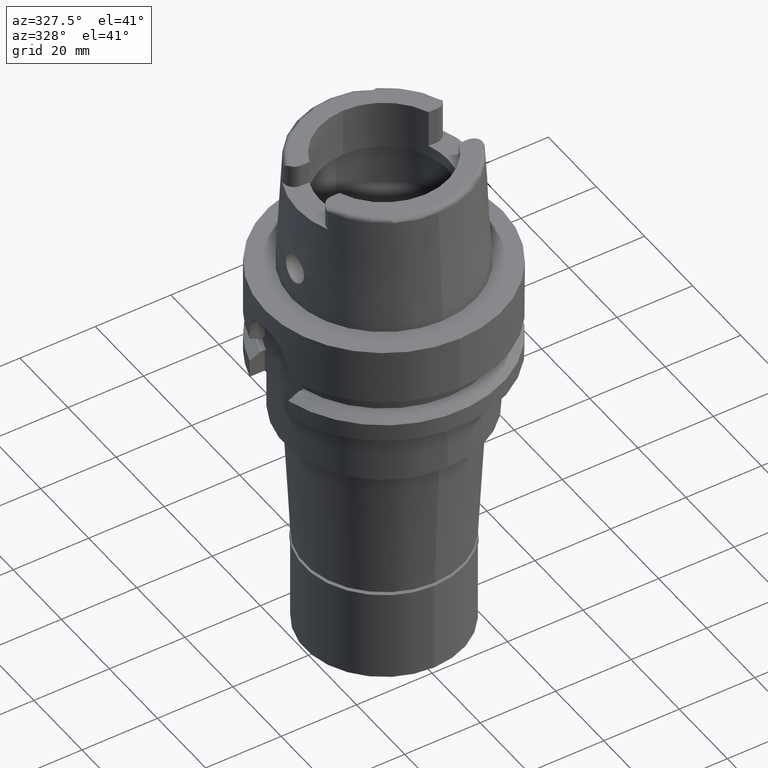
[diagram: clean part render]
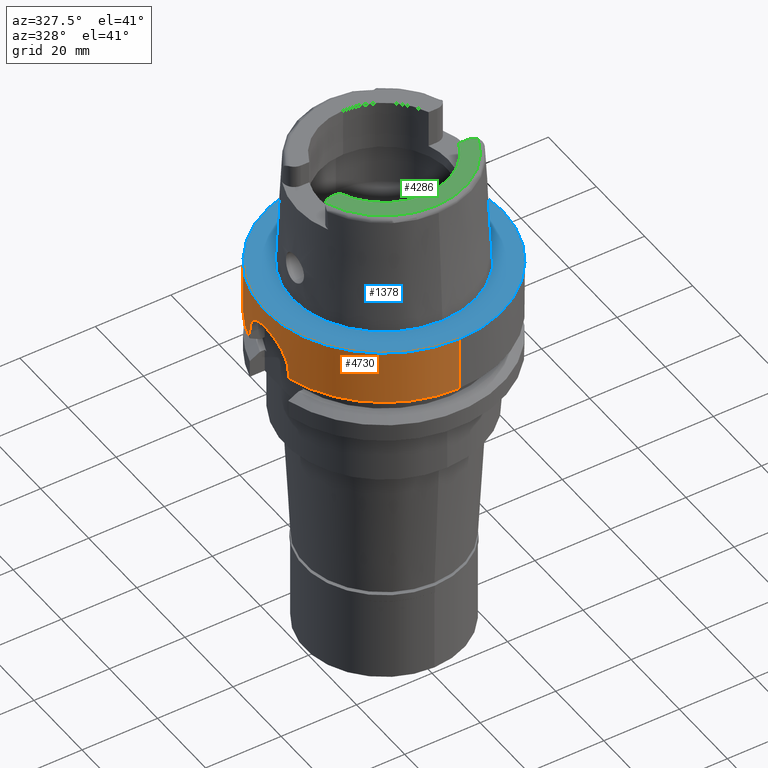
[diagram: same view with three faces highlighted in distinct colors, each labeled with its STEP entity id]
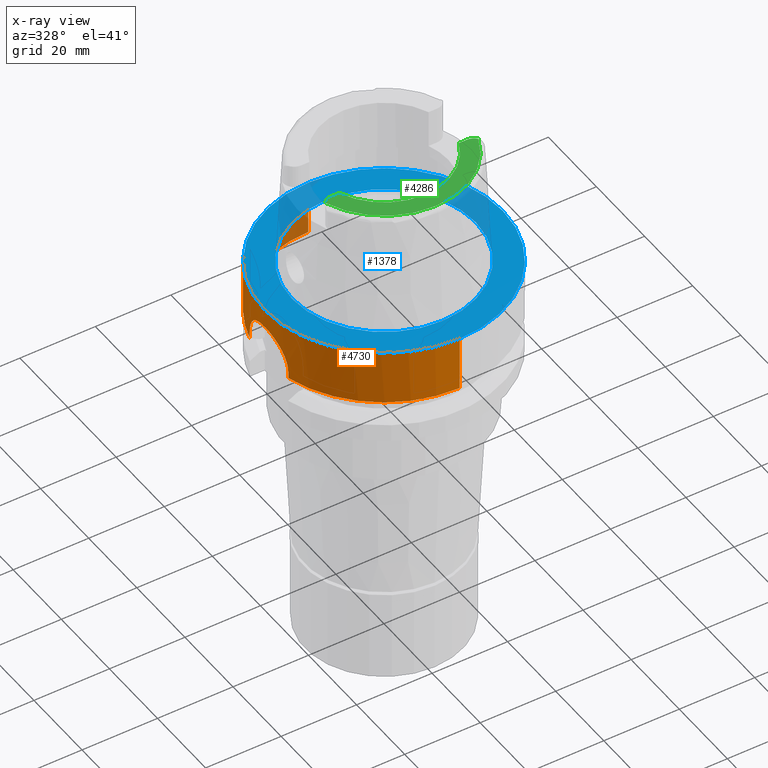
[diagram: x-ray of the same camera — body ghosted, the three highlighted faces saturated]
A machine part, auxiliary view with three faces highlighted in distinct colors.
The next image is the same camera in x-ray (body ghosted, the three faces saturated) — at least one of them is partly hidden behind the body in this view.
Their STEP definitions:

[orange] entity #4730 — the highlighted cylindrical surface (partial cylindrical patch) has radius 31.5 mm, axis along (0, 0, 1).
#36 = CARTESIAN_POINT ( 'NONE',  ( 0.0000000000000000000, 0.0000000000000000000, -14.62250092523999889 ) ) ;
#79 = CARTESIAN_POINT ( 'NONE',  ( -31.17125852457936475, 4.540368874102139962, -6.412031945349157880 ) ) ;
#102 = CARTESIAN_POINT ( 'NONE',  ( -30.53486720067081350, 7.738075684351631622, -10.95273669261678151 ) ) ;
#118 = CARTESIAN_POINT ( 'NONE',  ( -24.31739938360097497, 20.02303739605130772, -11.41221535958003663 ) ) ;
#134 = CARTESIAN_POINT ( 'NONE',  ( -31.21806995169348653, 4.210859599592639668, -6.192815206136385697 ) ) ;
#156 = CARTESIAN_POINT ( 'NONE',  ( -30.46719547316000032, -8.000000000000000000, -13.00000000000000000 ) ) ;
#159 = CARTESIAN_POINT ( 'NONE',  ( -30.91857318719439363, -6.036445372316031843, -7.723293636608661750 ) ) ;
#187 = CARTESIAN_POINT ( 'NONE',  ( -31.39671527135315543, -2.551756247944871436, -5.416712190222533252 ) ) ;
#320 = DIRECTION ( 'NONE',  ( 0.0000000000000000000, 0.0000000000000000000, 1.000000000000000000 ) ) ;
#321 = EDGE_CURVE ( 'NONE', #2364, #2716, #1869, .T. ) ;
#322 = EDGE_LOOP ( 'NONE', ( #1585, #693, #4148, #4102, #1150, #3219, #4554, #2486, #762, #4663, #771, #3641 ) ) ;
#331 = LINE ( 'NONE', #1105, #4354 ) ;
#348 = CARTESIAN_POINT ( 'NONE',  ( -22.71555511956211859, 21.82388934614423803, -7.023550805667640340 ) ) ;
#407 = CARTESIAN_POINT ( 'NONE',  ( -20.00000000000000000, 24.33618704727999926, -5.000000000001000089 ) ) ;
#498 = EDGE_CURVE ( 'NONE', #2081, #1656, #331, .T. ) ;
#524 = CARTESIAN_POINT ( 'NONE',  ( -31.49677512529922652, -0.5190792995170155910, -5.012591775769404734 ) ) ;
#582 = VERTEX_POINT ( 'NONE', #5207 ) ;
#586 = CARTESIAN_POINT ( 'NONE',  ( -30.51893315439571097, 7.800474451156759415, -11.20536184592949169 ) ) ;
#602 = EDGE_CURVE ( 'NONE', #2003, #4839, #1016, .T. ) ;
#613 = CARTESIAN_POINT ( 'NONE',  ( -30.95339424955331609, 5.845829516478185717, -7.532370027206816587 ) ) ;
#637 = CARTESIAN_POINT ( 'NONE',  ( -30.72362680542134328, 6.956926099389388440, -9.014865801447339066 ) ) ;
#693 = ORIENTED_EDGE ( 'NONE', *, *, #4214, .F. ) ;
#750 = LINE ( 'NONE', #2186, #5059 ) ;
#762 = ORIENTED_EDGE ( 'NONE', *, *, #3605, .T. ) ;
#770 = DIRECTION ( 'NONE',  ( 0.0000000000000000000, -2.672583210395999918E-14, -1.000000000000000000 ) ) ;
#771 = ORIENTED_EDGE ( 'NONE', *, *, #3506, .T. ) ;
#787 = CARTESIAN_POINT ( 'NONE',  ( -23.42282105971236561, 21.06232378565220387, -8.128107010674932909 ) ) ;
#797 = CARTESIAN_POINT ( 'NONE',  ( 0.0000000000000000000, 0.0000000000000000000, -14.62250092523999889 ) ) ;
#805 = LINE ( 'NONE', #2065, #2504 ) ;
#815 = CARTESIAN_POINT ( 'NONE',  ( -22.11654899248160788, 22.43007941135832795, -6.369228008395599439 ) ) ;
#839 = DIRECTION ( 'NONE',  ( -0.9672125547036138915, -0.2539682539683034701, 0.0000000000000000000 ) ) ;
#845 = CARTESIAN_POINT ( 'NONE',  ( -23.23273074194696974, 21.27338265816705132, -7.764950729943016938 ) ) ;
#933 = CARTESIAN_POINT ( 'NONE',  ( -24.12049851483102003, 20.25961390236335902, -10.08972362107126841 ) ) ;
#943 = CARTESIAN_POINT ( 'NONE',  ( -31.24713681681722477, -3.984897501304583312, -6.061802170373099763 ) ) ;
#962 = CARTESIAN_POINT ( 'NONE',  ( -30.46719547316397581, 8.000000000001035616, -12.74141169851611366 ) ) ;
#964 = CARTESIAN_POINT ( 'NONE',  ( -30.48036059509013285, -7.950356523976281231, -11.97071246685689161 ) ) ;
#996 = CARTESIAN_POINT ( 'NONE',  ( -30.46719547316000032, -8.000000000000000000, -13.00000000000000000 ) ) ;
#1016 = B_SPLINE_CURVE_WITH_KNOTS ( 'NONE', 3,
 ( #3042, #3837, #118, #2601, #4281, #3910, #1400, #4725, #3093, #933, #3833, #2969, #5027, #4245, #5119, #5095, #2999, #3725, #787, #2044, #845, #2592, #348, #1628, #2076, #3750, #3339, #5006, #1208, #2908, #815, #2512, #4188, #407 ),
 .UNSPECIFIED., .F., .F.,
 ( 4, 2, 2, 1, 2, 2, 2, 2, 1, 1, 2, 2, 2, 2, 1, 1, 1, 2, 2, 4 ),
 ( 0.0000000000000000000, 0.1249999999999981404, 0.1874999999999975853, 0.2187499999999971134, 0.2343749999999968636, 0.2499999999999966138, 0.3749999999999957256, 0.4374999999999951705, 0.4687499999999948930, 0.4843749999999952260, 0.4921874999999951150, 0.4999999999999950040, 0.6249999999999942268, 0.6874999999999938938, 0.7187499999999938938, 0.7343749999999937828, 0.7421874999999940048, 0.7460937499999945599, 0.7499999999999951150, 1.000000000000000000 ),
 .UNSPECIFIED. ) ;
#1024 = CARTESIAN_POINT ( 'NONE',  ( -31.02187808113702872, 5.470778612142692232, -7.156988511190683688 ) ) ;
#1030 = CARTESIAN_POINT ( 'NONE',  ( 0.0000000000000000000, -31.50000000000000000, 0.0000000000000000000 ) ) ;
#1050 = CARTESIAN_POINT ( 'NONE',  ( -31.28953998201770048, 3.637077696510422342, -5.873297521405669741 ) ) ;
#1071 = CIRCLE ( 'NONE', #3026, 31.50000000000000000 ) ;
#1105 = CARTESIAN_POINT ( 'NONE',  ( 0.0000000000000000000, -31.50000000000000000, 0.0000000000000000000 ) ) ;
#1138 = EDGE_CURVE ( 'NONE', #3831, #1656, #2896, .T. ) ;
#1150 = ORIENTED_EDGE ( 'NONE', *, *, #4287, .T. ) ;
#1189 = DIRECTION ( 'NONE',  ( 0.0000000000000000000, 0.0000000000000000000, 1.000000000000000000 ) ) ;
#1203 = DIRECTION ( 'NONE',  ( -0.0000000000000000000, -0.0000000000000000000, -1.000000000000000000 ) ) ;
#1208 = CARTESIAN_POINT ( 'NONE',  ( -22.13990552091419062, 22.40702674288545282, -6.391681059372950280 ) ) ;
#1242 = EDGE_CURVE ( 'NONE', #2354, #2716, #5250, .T. ) ;
#1338 = DIRECTION ( 'NONE',  ( -1.630691539743991690E-08, -6.209897358423978462E-08, -0.9999999999999980016 ) ) ;
#1361 = CARTESIAN_POINT ( 'NONE',  ( -30.59373723261228406, -7.502244466330298955, -10.20989398916889535 ) ) ;
#1385 = CARTESIAN_POINT ( 'NONE',  ( -30.51876164595472218, -7.801142564629040876, -11.20858455538008869 ) ) ;
#1400 = CARTESIAN_POINT ( 'NONE',  ( -24.17238210457848524, 20.19774409071592558, -10.34029033770483963 ) ) ;
#1415 = CARTESIAN_POINT ( 'NONE',  ( -31.21750923799496036, -4.210710666917979239, -6.196542798051132728 ) ) ;
#1438 = CARTESIAN_POINT ( 'NONE',  ( -31.30298826463104334, 3.519555021601333600, -5.814551383529717121 ) ) ;
#1441 = CARTESIAN_POINT ( 'NONE',  ( -30.46719547316000032, 8.000000000000000000, -13.00000000000000000 ) ) ;
#1467 = CARTESIAN_POINT ( 'NONE',  ( -31.26152930267402041, -3.870456020469371872, -5.997298722305188790 ) ) ;
#1509 = VECTOR ( 'NONE', #1203, 1000.000000000000000 ) ;
#1527 = VERTEX_POINT ( 'NONE', #156 ) ;
#1569 = DIRECTION ( 'NONE',  ( 0.0000000000000000000, 0.0000000000000000000, 1.000000000000000000 ) ) ;
#1585 = ORIENTED_EDGE ( 'NONE', *, *, #602, .F. ) ;
#1628 = CARTESIAN_POINT ( 'NONE',  ( -22.60187682607207194, 21.94168555301713397, -6.883928054154604403 ) ) ;
#1631 = VERTEX_POINT ( 'NONE', #2355 ) ;
#1656 = VERTEX_POINT ( 'NONE', #4164 ) ;
#1776 = CARTESIAN_POINT ( 'NONE',  ( -31.12248983947012704, 4.863358306369471862, -6.646602164951598724 ) ) ;
#1805 = CARTESIAN_POINT ( 'NONE',  ( -30.59375289132899667, 7.502188844600670592, -10.20961931647805798 ) ) ;
#1830 = CARTESIAN_POINT ( 'NONE',  ( -31.37653858702547893, 2.796769158684870415, -5.500265141537501457 ) ) ;
#1854 = CARTESIAN_POINT ( 'NONE',  ( -31.05592043737171437, 5.274730966343901706, -6.979333167998830412 ) ) ;
#1869 = CIRCLE ( 'NONE', #4254, 31.50000000000000711 ) ;
#1882 = CARTESIAN_POINT ( 'NONE',  ( -30.81885551309213866, 6.516951823586190073, -8.352437154013390597 ) ) ;
#1956 = VECTOR ( 'NONE', #1984, 1000.000000000000000 ) ;
#1984 = DIRECTION ( 'NONE',  ( 0.0000000000000000000, 2.672583210395999918E-14, -1.000000000000000000 ) ) ;
#2003 = VERTEX_POINT ( 'NONE', #5260 ) ;
#2044 = CARTESIAN_POINT ( 'NONE',  ( -23.41383396518895310, 21.07231654906985696, -8.110744566082036755 ) ) ;
#2065 = CARTESIAN_POINT ( 'NONE',  ( -24.33618953147999875, 19.99999697720000214, -14.62251175989000096 ) ) ;
#2076 = CARTESIAN_POINT ( 'NONE',  ( -22.42282341165946846, 22.12411074930098565, -6.681966651694929205 ) ) ;
#2081 = VERTEX_POINT ( 'NONE', #1030 ) ;
#2109 = CARTESIAN_POINT ( 'NONE',  ( -20.00000000000000000, 24.33618704727999926, -5.000000000001000089 ) ) ;
#2186 = CARTESIAN_POINT ( 'NONE',  ( -30.46719534834999976, -8.000000475334999805, -14.62249661020000069 ) ) ;
#2222 = CARTESIAN_POINT ( 'NONE',  ( -31.37578633306497977, -2.797359784010363892, -5.503888911975534981 ) ) ;
#2280 = CARTESIAN_POINT ( 'NONE',  ( -30.57233659845883977, 7.588686656457143798, -10.45426432969273023 ) ) ;
#2292 = VECTOR ( 'NONE', #1338, 1000.000000000000000 ) ;
#2305 = CARTESIAN_POINT ( 'NONE',  ( -31.48718059661122126, 1.033475740137638876, -5.050046565198228699 ) ) ;
#2354 = VERTEX_POINT ( 'NONE', #5048 ) ;
#2355 = CARTESIAN_POINT ( 'NONE',  ( 0.0000000000000000000, 31.50000000000000000, -14.62250092523999889 ) ) ;
#2364 = VERTEX_POINT ( 'NONE', #2611 ) ;
#2428 = LINE ( 'NONE', #2803, #1509 ) ;
#2486 = ORIENTED_EDGE ( 'NONE', *, *, #498, .F. ) ;
#2498 = EDGE_CURVE ( 'NONE', #582, #1631, #4999, .T. ) ;
#2504 = VECTOR ( 'NONE', #3739, 1000.000000000000000 ) ;
#2512 = CARTESIAN_POINT ( 'NONE',  ( -21.51725636792768270, 23.02046004033381621, -5.798395461353816671 ) ) ;
#2563 = EDGE_CURVE ( 'NONE', #4839, #5145, #2428, .T. ) ;
#2592 = CARTESIAN_POINT ( 'NONE',  ( -23.03951805167712052, 21.48332356735406989, -7.456833201218234564 ) ) ;
#2601 = CARTESIAN_POINT ( 'NONE',  ( -24.26103639256389144, 20.09123961569170191, -10.89441491282532226 ) ) ;
#2611 = CARTESIAN_POINT ( 'NONE',  ( -24.33618953147999875, 19.99999697720000214, -14.62251175989000096 ) ) ;
#2634 = CARTESIAN_POINT ( 'NONE',  ( -30.66617587512583043, 7.202629446171625816, -9.478638014006165236 ) ) ;
#2649 = DIRECTION ( 'NONE',  ( -7.692494275302640875E-08, 2.929651695337864594E-07, 0.9999999999999540368 ) ) ;
#2657 = CARTESIAN_POINT ( 'NONE',  ( -30.47046936434525932, 7.987562727870274770, -12.48389887869857873 ) ) ;
#2716 = VERTEX_POINT ( 'NONE', #5141 ) ;
#2717 = CARTESIAN_POINT ( 'NONE',  ( -31.24778516539586093, 3.985035518564018719, -6.058131600150513663 ) ) ;
#2739 = CARTESIAN_POINT ( 'NONE',  ( -31.43404276894119675, 2.052659527317909127, -5.263366927176989840 ) ) ;
#2803 = CARTESIAN_POINT ( 'NONE',  ( -20.00000000000000000, 24.33618704727589588, 0.0000000000000000000 ) ) ;
#2828 = CARTESIAN_POINT ( 'NONE',  ( -20.00001377493000021, 24.33617572673000140, -14.62245154170999939 ) ) ;
#2896 = CIRCLE ( 'NONE', #4668, 31.50000000000000000 ) ;
#2908 = CARTESIAN_POINT ( 'NONE',  ( -22.12365065708123524, 22.42307461635802213, -6.376033572625946277 ) ) ;
#2934 = DIRECTION ( 'NONE',  ( 0.0000000000000000000, 0.0000000000000000000, 1.000000000000000000 ) ) ;
#2969 = CARTESIAN_POINT ( 'NONE',  ( -23.93461104867942524, 20.47968988056373263, -9.360297831436831473 ) ) ;
#2997 = B_SPLINE_CURVE_WITH_KNOTS ( 'NONE', 3,
 ( #3079, #962, #2657, #4764, #4346, #586, #102, #2280, #1805, #2634, #637, #1882, #4822, #3080, #613, #1024, #1854, #5246, #1776, #4315, #79, #134, #2717, #1050, #1438, #3945, #3513, #1830, #3134, #2739, #3571, #2305, #3970, #4400, #524, #3896, #4350, #5220, #4740, #187, #2222, #3871, #5272, #3921, #1467, #943, #1415, #3491, #4379, #3155, #5166, #4848, #159, #4427, #5195, #3105, #3463, #3541, #1361, #3056, #4766, #1385, #964, #4793, #996 ),
 .UNSPECIFIED., .F., .F.,
 ( 4, 2, 2, 2, 2, 2, 2, 2, 2, 2, 2, 2, 2, 2, 2, 2, 2, 2, 2, 1, 2, 2, 2, 2, 2, 2, 2, 2, 2, 2, 2, 2, 4 ),
 ( 0.0000000000000000000, 0.03124999999999995837, 0.06249999999999991673, 0.09374999999999987510, 0.1249999999999998335, 0.1874999999999997224, 0.2187499999999997780, 0.2499999999999998890, 0.2812499999999999445, 0.2968750000000000000, 0.3125000000000000000, 0.3437500000000001110, 0.3593750000000000555, 0.3750000000000000555, 0.4062500000000000000, 0.4374999999999999445, 0.4999999999999998890, 0.5312499999999998890, 0.5624999999999997780, 0.5937499999999997780, 0.6093749999999997780, 0.6249999999999996669, 0.6562499999999996669, 0.6718749999999996669, 0.6874999999999996669, 0.7187499999999996669, 0.7499999999999997780, 0.8124999999999998890, 0.8437500000000000000, 0.8749999999999998890, 0.9062499999999998890, 0.9374999999999998890, 1.000000000000000000 ),
 .UNSPECIFIED. ) ;
#2999 = CARTESIAN_POINT ( 'NONE',  ( -23.47110503767037315, 21.00852691522635141, -8.222930559040365850 ) ) ;
#3026 = AXIS2_PLACEMENT_3D ( 'NONE', #3370, #320, #5063 ) ;
#3042 = CARTESIAN_POINT ( 'NONE',  ( -24.33618704727999926, 20.00000000000000000, -12.11171390365999834 ) ) ;
#3056 = CARTESIAN_POINT ( 'NONE',  ( -30.57222014968889923, -7.589155089353679884, -10.45566941638133507 ) ) ;
#3079 = CARTESIAN_POINT ( 'NONE',  ( -30.46719547316000032, 8.000000000000000000, -13.00000000000000000 ) ) ;
#3080 = CARTESIAN_POINT ( 'NONE',  ( -30.91893244297368781, 6.024849328295649897, -7.730129281958025622 ) ) ;
#3093 = CARTESIAN_POINT ( 'NONE',  ( -24.12922918956571294, 20.24921916685458001, -10.12997961463642227 ) ) ;
#3105 = CARTESIAN_POINT ( 'NONE',  ( -30.72496487600235682, -6.945680446835003963, -9.021595561511114525 ) ) ;
#3107 = EDGE_CURVE ( 'NONE', #3831, #1527, #750, .T. ) ;
#3134 = CARTESIAN_POINT ( 'NONE',  ( -31.39751750560794363, 2.551146883218518457, -5.413142201694189026 ) ) ;
#3155 = CARTESIAN_POINT ( 'NONE',  ( -31.12245719726680449, -4.866787956074039911, -6.645079909400829266 ) ) ;
#3204 = FACE_OUTER_BOUND ( 'NONE', #322, .T. ) ;
#3219 = ORIENTED_EDGE ( 'NONE', *, *, #3107, .F. ) ;
#3231 = DIRECTION ( 'NONE',  ( 0.0000000000000000000, 1.000000000000000000, 0.0000000000000000000 ) ) ;
#3250 = CARTESIAN_POINT ( 'NONE',  ( 0.0000000000000000000, 31.50000000000000000, 0.0000000000000000000 ) ) ;
#3339 = CARTESIAN_POINT ( 'NONE',  ( -22.22049073799695407, 22.32720105525508458, -6.470536368740974709 ) ) ;
#3370 = CARTESIAN_POINT ( 'NONE',  ( 0.0000000000000000000, 0.0000000000000000000, -14.62250092523999889 ) ) ;
#3380 = CIRCLE ( 'NONE', #5244, 31.50000000000000000 ) ;
#3463 = CARTESIAN_POINT ( 'NONE',  ( -30.66829496329702920, -7.191774992679878409, -9.485896381865398297 ) ) ;
#3491 = CARTESIAN_POINT ( 'NONE',  ( -31.20242024745796883, -4.321054262826403480, -6.266095709814029746 ) ) ;
#3499 = DIRECTION ( 'NONE',  ( 0.0000000000000000000, -1.000000000000000000, 0.0000000000000000000 ) ) ;
#3506 = EDGE_CURVE ( 'NONE', #1631, #5145, #1071, .T. ) ;
#3513 = CARTESIAN_POINT ( 'NONE',  ( -31.34136359326490506, 3.159699506644068734, -5.649302505179532474 ) ) ;
#3541 = CARTESIAN_POINT ( 'NONE',  ( -30.64173994537016910, -7.303711591445620321, -9.725159153974846760 ) ) ;
#3571 = CARTESIAN_POINT ( 'NONE',  ( -31.44966182429118007, 1.798311609534802180, -5.200423058021767631 ) ) ;
#3605 = EDGE_CURVE ( 'NONE', #2081, #582, #3380, .T. ) ;
#3641 = ORIENTED_EDGE ( 'NONE', *, *, #2563, .F. ) ;
#3673 = CARTESIAN_POINT ( 'NONE',  ( 0.0000000000000000000, 0.0000000000000000000, 0.0000000000000000000 ) ) ;
#3725 = CARTESIAN_POINT ( 'NONE',  ( -23.44222797492961519, 21.04071874343883763, -8.165971955047327313 ) ) ;
#3739 = DIRECTION ( 'NONE',  ( 9.894060569838856819E-07, 1.203919407603981730E-06, 0.9999999999987858601 ) ) ;
#3750 = CARTESIAN_POINT ( 'NONE',  ( -22.33116271090877802, 22.21675606967029282, -6.582853157691396895 ) ) ;
#3831 = VERTEX_POINT ( 'NONE', #4888 ) ;
#3833 = CARTESIAN_POINT ( 'NONE',  ( -24.03262762953693965, 20.36408952883833834, -9.698778667879587090 ) ) ;
#3837 = CARTESIAN_POINT ( 'NONE',  ( -24.33618704728000637, 20.00000000000000711, -11.76143503008205471 ) ) ;
#3871 = CARTESIAN_POINT ( 'NONE',  ( -31.36478212464034598, -2.918131538593207619, -5.550075916268424336 ) ) ;
#3896 = CARTESIAN_POINT ( 'NONE',  ( -31.48408245245651216, -1.033846574582274469, -5.062798261228517838 ) ) ;
#3910 = CARTESIAN_POINT ( 'NONE',  ( -24.19527956968729754, 20.17031545704069018, -10.46745987686011503 ) ) ;
#3921 = CARTESIAN_POINT ( 'NONE',  ( -31.30329634981656639, -3.522529521366311034, -5.812388975414770620 ) ) ;
#3945 = CARTESIAN_POINT ( 'NONE',  ( -31.32884444780465572, 3.281439838084335037, -5.702789551189126449 ) ) ;
#3970 = CARTESIAN_POINT ( 'NONE',  ( -31.50001416988314773, 0.5184579006481294661, -4.999947540202375862 ) ) ;
#4102 = ORIENTED_EDGE ( 'NONE', *, *, #1242, .F. ) ;
#4148 = ORIENTED_EDGE ( 'NONE', *, *, #321, .T. ) ;
#4164 = CARTESIAN_POINT ( 'NONE',  ( 0.0000000000000000000, -31.50000000000000000, -14.62250092523999889 ) ) ;
#4188 = CARTESIAN_POINT ( 'NONE',  ( -20.81481333261101341, 23.66655599043625813, -5.344980545176353459 ) ) ;
#4214 = EDGE_CURVE ( 'NONE', #2364, #2003, #805, .T. ) ;
#4245 = CARTESIAN_POINT ( 'NONE',  ( -23.69378235062319149, 20.75730693223430734, -8.709620729066509526 ) ) ;
#4254 = AXIS2_PLACEMENT_3D ( 'NONE', #797, #1189, #5457 ) ;
#4281 = CARTESIAN_POINT ( 'NONE',  ( -24.23755181296511907, 20.11957536446044159, -10.72281759680524971 ) ) ;
#4287 = EDGE_CURVE ( 'NONE', #2354, #1527, #2997, .T. ) ;
#4315 = CARTESIAN_POINT ( 'NONE',  ( -31.15505701797507854, 4.650166666989048458, -6.489017651392170016 ) ) ;
#4346 = CARTESIAN_POINT ( 'NONE',  ( -30.49311663444910181, 7.900792394659328366, -11.71739009625630601 ) ) ;
#4350 = CARTESIAN_POINT ( 'NONE',  ( -31.47467719723085722, -1.288635795994537814, -5.100160804237098944 ) ) ;
#4354 = VECTOR ( 'NONE', #770, 1000.000000000000000 ) ;
#4379 = CARTESIAN_POINT ( 'NONE',  ( -31.15515541103102848, -4.653648920961161117, -6.487460649499388055 ) ) ;
#4400 = CARTESIAN_POINT ( 'NONE',  ( -31.49999289744041775, -0.2605192614746821289, -5.000026923804304246 ) ) ;
#4427 = CARTESIAN_POINT ( 'NONE',  ( -30.85032145203767584, -6.371615249534634096, -8.133429115957651945 ) ) ;
#4534 = AXIS2_PLACEMENT_3D ( 'NONE', #3673, #1569, #3231 ) ;
#4554 = ORIENTED_EDGE ( 'NONE', *, *, #1138, .T. ) ;
#4663 = ORIENTED_EDGE ( 'NONE', *, *, #2498, .T. ) ;
#4668 = AXIS2_PLACEMENT_3D ( 'NONE', #36, #2934, #839 ) ;
#4725 = CARTESIAN_POINT ( 'NONE',  ( -24.14684262426480998, 20.22822477512563921, -10.21398258185091024 ) ) ;
#4730 = ADVANCED_FACE ( 'NONE', ( #3204 ), #4869, .T. ) ;
#4740 = CARTESIAN_POINT ( 'NONE',  ( -31.42616278187809087, -2.180628401395530158, -5.295126509345307042 ) ) ;
#4750 = CARTESIAN_POINT ( 'NONE',  ( 0.0000000000000000000, 0.0000000000000000000, 0.0000000000000000000 ) ) ;
#4764 = CARTESIAN_POINT ( 'NONE',  ( -30.48347349200445322, 7.937789709826462037, -11.97102420239620635 ) ) ;
#4766 = CARTESIAN_POINT ( 'NONE',  ( -30.53478168034418161, -7.738412471884907440, -10.95403629003705248 ) ) ;
#4793 = CARTESIAN_POINT ( 'NONE',  ( -30.46719547316398291, -8.000000000001026734, -12.48317006934387940 ) ) ;
#4822 = CARTESIAN_POINT ( 'NONE',  ( -30.85175633428337250, 6.359899679385017990, -8.139651759944458220 ) ) ;
#4839 = VERTEX_POINT ( 'NONE', #2109 ) ;
#4848 = CARTESIAN_POINT ( 'NONE',  ( -31.02184472236074342, -5.471001753605183815, -7.157136256373179073 ) ) ;
#4869 = CYLINDRICAL_SURFACE ( 'NONE', #4534, 31.50000000000000000 ) ;
#4888 = CARTESIAN_POINT ( 'NONE',  ( -30.46719534834999976, -8.000000475334999805, -14.62249661020000069 ) ) ;
#4999 = LINE ( 'NONE', #3250, #1956 ) ;
#5006 = CARTESIAN_POINT ( 'NONE',  ( -22.16422112936536593, 22.38299474293508240, -6.415212143697866409 ) ) ;
#5027 = CARTESIAN_POINT ( 'NONE',  ( -23.75772248649901641, 20.68403774231243375, -8.870103976812400148 ) ) ;
#5048 = CARTESIAN_POINT ( 'NONE',  ( -30.46719547316000032, 8.000000000000000000, -13.00000000000000000 ) ) ;
#5059 = VECTOR ( 'NONE', #2649, 1000.000000000000227 ) ;
#5063 = DIRECTION ( 'NONE',  ( 0.0000000000000000000, 1.000000000000000000, 0.0000000000000000000 ) ) ;
#5095 = CARTESIAN_POINT ( 'NONE',  ( -23.53685168013636542, 20.93493527650296571, -8.356951744155907136 ) ) ;
#5119 = CARTESIAN_POINT ( 'NONE',  ( -23.59040622408590693, 20.87450958103633525, -8.473706688181136926 ) ) ;
#5141 = CARTESIAN_POINT ( 'NONE',  ( -30.46719549962000073, 7.999999899245000101, -14.62250183987999996 ) ) ;
#5145 = VERTEX_POINT ( 'NONE', #2828 ) ;
#5166 = CARTESIAN_POINT ( 'NONE',  ( -31.05571320556486015, -5.275949611093287750, -6.980403696092779775 ) ) ;
#5180 = DIRECTION ( 'NONE',  ( 0.0000000000000000000, 0.0000000000000000000, -1.000000000000000000 ) ) ;
#5195 = CARTESIAN_POINT ( 'NONE',  ( -30.75521212177036290, -6.810975039628980987, -8.795221607784702300 ) ) ;
#5207 = CARTESIAN_POINT ( 'NONE',  ( 0.0000000000000000000, 31.50000000000000000, 0.0000000000000000000 ) ) ;
#5220 = CARTESIAN_POINT ( 'NONE',  ( -31.44949749568470310, -1.801386730694797267, -5.201079033724903766 ) ) ;
#5244 = AXIS2_PLACEMENT_3D ( 'NONE', #4750, #5180, #3499 ) ;
#5246 = CARTESIAN_POINT ( 'NONE',  ( -31.10597419837395705, 4.967807807777044893, -6.727903275435365593 ) ) ;
#5250 = LINE ( 'NONE', #1441, #2292 ) ;
#5260 = CARTESIAN_POINT ( 'NONE',  ( -24.33618704727999926, 20.00000000000000000, -12.11171390365999834 ) ) ;
#5272 = CARTESIAN_POINT ( 'NONE',  ( -31.32926175612021069, -3.284441417846848843, -5.700583273905580839 ) ) ;
#5457 = DIRECTION ( 'NONE',  ( -0.7725773665802099233, 0.6349206349206079070, 0.0000000000000000000 ) ) ;

[blue] entity #1378 — the highlighted planar face has unit normal (0, 0, 1).
#26 = ORIENTED_EDGE ( 'NONE', *, *, #869, .F. ) ;
#582 = VERTEX_POINT ( 'NONE', #5207 ) ;
#705 = EDGE_LOOP ( 'NONE', ( #26, #4359 ) ) ;
#869 = EDGE_CURVE ( 'NONE', #4737, #1232, #4220, .T. ) ;
#1030 = CARTESIAN_POINT ( 'NONE',  ( 0.0000000000000000000, -31.50000000000000000, 0.0000000000000000000 ) ) ;
#1059 = DIRECTION ( 'NONE',  ( 0.0000000000000000000, 0.0000000000000000000, 1.000000000000000000 ) ) ;
#1061 = CIRCLE ( 'NONE', #2139, 31.50000000000000000 ) ;
#1219 = CARTESIAN_POINT ( 'NONE',  ( 0.0000000000000000000, 0.0000000000000000000, -1.705302565823999926E-12 ) ) ;
#1232 = VERTEX_POINT ( 'NONE', #2636 ) ;
#1378 = ADVANCED_FACE ( 'NONE', ( #2927, #4596 ), #5405, .T. ) ;
#1411 = EDGE_CURVE ( 'NONE', #1232, #4737, #4041, .T. ) ;
#1490 = AXIS2_PLACEMENT_3D ( 'NONE', #5108, #4143, #4115 ) ;
#1643 = DIRECTION ( 'NONE',  ( 0.0000000000000000000, 0.0000000000000000000, 1.000000000000000000 ) ) ;
#1934 = CARTESIAN_POINT ( 'NONE',  ( 0.0000000000000000000, 24.31503482328999866, -1.705302565823999926E-12 ) ) ;
#2081 = VERTEX_POINT ( 'NONE', #1030 ) ;
#2139 = AXIS2_PLACEMENT_3D ( 'NONE', #2308, #3925, #3948 ) ;
#2308 = CARTESIAN_POINT ( 'NONE',  ( 0.0000000000000000000, 0.0000000000000000000, 0.0000000000000000000 ) ) ;
#2422 = ORIENTED_EDGE ( 'NONE', *, *, #2865, .F. ) ;
#2636 = CARTESIAN_POINT ( 'NONE',  ( 0.0000000000000000000, -24.31503482328999866, -9.485745522396998208E-13 ) ) ;
#2865 = EDGE_CURVE ( 'NONE', #582, #2081, #1061, .T. ) ;
#2927 = FACE_OUTER_BOUND ( 'NONE', #3118, .T. ) ;
#3087 = AXIS2_PLACEMENT_3D ( 'NONE', #4097, #1059, #5385 ) ;
#3118 = EDGE_LOOP ( 'NONE', ( #2422, #4421 ) ) ;
#3380 = CIRCLE ( 'NONE', #5244, 31.50000000000000000 ) ;
#3499 = DIRECTION ( 'NONE',  ( 0.0000000000000000000, -1.000000000000000000, 0.0000000000000000000 ) ) ;
#3605 = EDGE_CURVE ( 'NONE', #2081, #582, #3380, .T. ) ;
#3925 = DIRECTION ( 'NONE',  ( 0.0000000000000000000, 0.0000000000000000000, -1.000000000000000000 ) ) ;
#3948 = DIRECTION ( 'NONE',  ( 0.0000000000000000000, 1.000000000000000000, 0.0000000000000000000 ) ) ;
#4041 = CIRCLE ( 'NONE', #4223, 24.31503482328999866 ) ;
#4097 = CARTESIAN_POINT ( 'NONE',  ( 0.0000000000000000000, 0.0000000000000000000, -1.705302565823999926E-12 ) ) ;
#4115 = DIRECTION ( 'NONE',  ( 1.000000000000000000, 0.0000000000000000000, 0.0000000000000000000 ) ) ;
#4143 = DIRECTION ( 'NONE',  ( 0.0000000000000000000, 0.0000000000000000000, 1.000000000000000000 ) ) ;
#4220 = CIRCLE ( 'NONE', #3087, 24.31503482328999866 ) ;
#4223 = AXIS2_PLACEMENT_3D ( 'NONE', #1219, #1643, #5046 ) ;
#4359 = ORIENTED_EDGE ( 'NONE', *, *, #1411, .F. ) ;
#4421 = ORIENTED_EDGE ( 'NONE', *, *, #3605, .F. ) ;
#4596 = FACE_BOUND ( 'NONE', #705, .T. ) ;
#4737 = VERTEX_POINT ( 'NONE', #1934 ) ;
#4750 = CARTESIAN_POINT ( 'NONE',  ( 0.0000000000000000000, 0.0000000000000000000, 0.0000000000000000000 ) ) ;
#5046 = DIRECTION ( 'NONE',  ( 0.0000000000000000000, -1.000000000000000000, 0.0000000000000000000 ) ) ;
#5108 = CARTESIAN_POINT ( 'NONE',  ( 0.0000000000000000000, 0.0000000000000000000, 0.0000000000000000000 ) ) ;
#5180 = DIRECTION ( 'NONE',  ( 0.0000000000000000000, 0.0000000000000000000, -1.000000000000000000 ) ) ;
#5207 = CARTESIAN_POINT ( 'NONE',  ( 0.0000000000000000000, 31.50000000000000000, 0.0000000000000000000 ) ) ;
#5244 = AXIS2_PLACEMENT_3D ( 'NONE', #4750, #5180, #3499 ) ;
#5385 = DIRECTION ( 'NONE',  ( 0.0000000000000000000, 1.000000000000000000, 0.0000000000000000000 ) ) ;
#5405 = PLANE ( 'NONE',  #1490 ) ;

[green] entity #4286 — the highlighted planar face has unit normal (0, 0, 1).
#87 = CIRCLE ( 'NONE', #3720, 21.57348458609000375 ) ;
#131 = PLANE ( 'NONE',  #819 ) ;
#154 = VERTEX_POINT ( 'NONE', #4197 ) ;
#305 = CARTESIAN_POINT ( 'NONE',  ( -15.80149043602999903, -6.270000000000000462, 32.00000000000000000 ) ) ;
#313 = CARTESIAN_POINT ( 'NONE',  ( 0.0000000000000000000, -17.00000000000000000, 32.00000000000000000 ) ) ;
#404 = DIRECTION ( 'NONE',  ( 0.0000000000000000000, -1.000000000000000000, 0.0000000000000000000 ) ) ;
#594 = DIRECTION ( 'NONE',  ( -0.7912216523763718756, 0.6115294733786784676, 0.0000000000000000000 ) ) ;
#606 = ORIENTED_EDGE ( 'NONE', *, *, #3158, .F. ) ;
#700 = EDGE_LOOP ( 'NONE', ( #1950, #606, #5215, #1641, #4135, #1933, #1683 ) ) ;
#704 = CARTESIAN_POINT ( 'NONE',  ( -20.26871835884000106, -7.388795116668999796, 32.00000000000000000 ) ) ;
#819 = AXIS2_PLACEMENT_3D ( 'NONE', #1829, #3512, #5218 ) ;
#911 = CIRCLE ( 'NONE', #4801, 17.00000000000000000 ) ;
#927 = DIRECTION ( 'NONE',  ( 0.0000000000000000000, 0.0000000000000000000, -1.000000000000000000 ) ) ;
#1156 = DIRECTION ( 'NONE',  ( -1.000000000000000000, 8.644330667353000255E-14, 0.0000000000000000000 ) ) ;
#1326 = AXIS2_PLACEMENT_3D ( 'NONE', #3519, #927, #594 ) ;
#1382 = LINE ( 'NONE', #4704, #4128 ) ;
#1478 = EDGE_CURVE ( 'NONE', #3843, #3302, #1382, .T. ) ;
#1641 = ORIENTED_EDGE ( 'NONE', *, *, #3933, .F. ) ;
#1651 = CARTESIAN_POINT ( 'NONE',  ( 0.0000000000000000000, 0.0000000000000000000, 32.00000000000000000 ) ) ;
#1683 = ORIENTED_EDGE ( 'NONE', *, *, #2026, .F. ) ;
#1829 = CARTESIAN_POINT ( 'NONE',  ( 0.0000000000000000000, 0.0000000000000000000, 32.00000000000000000 ) ) ;
#1863 = DIRECTION ( 'NONE',  ( 0.0000000000000000000, 0.0000000000000000000, 1.000000000000000000 ) ) ;
#1933 = ORIENTED_EDGE ( 'NONE', *, *, #4452, .T. ) ;
#1950 = ORIENTED_EDGE ( 'NONE', *, *, #3239, .F. ) ;
#2026 = EDGE_CURVE ( 'NONE', #3317, #3241, #5311, .T. ) ;
#2126 = DIRECTION ( 'NONE',  ( 0.0000000000000000000, 0.0000000000000000000, 1.000000000000000000 ) ) ;
#2217 = DIRECTION ( 'NONE',  ( -1.000000000000000000, -8.496094534321999950E-14, 0.0000000000000000000 ) ) ;
#2295 = CARTESIAN_POINT ( 'NONE',  ( 0.0000000000000000000, 0.0000000000000000000, 32.00000000000000000 ) ) ;
#2298 = VERTEX_POINT ( 'NONE', #3711 ) ;
#2348 = DIRECTION ( 'NONE',  ( 0.9401236264118068009, -0.3408336354621024911, 0.0000000000000000000 ) ) ;
#2398 = AXIS2_PLACEMENT_3D ( 'NONE', #5210, #3887, #4307 ) ;
#2409 = CIRCLE ( 'NONE', #2928, 17.00000000000000000 ) ;
#2776 = CARTESIAN_POINT ( 'NONE',  ( 0.0000000000000000000, 0.0000000000000000000, 32.00000000000000000 ) ) ;
#2836 = CIRCLE ( 'NONE', #2398, 2.800000000000000266 ) ;
#2928 = AXIS2_PLACEMENT_3D ( 'NONE', #1651, #2126, #404 ) ;
#3158 = EDGE_CURVE ( 'NONE', #3843, #2298, #2836, .T. ) ;
#3239 = EDGE_CURVE ( 'NONE', #2298, #3317, #87, .T. ) ;
#3241 = VERTEX_POINT ( 'NONE', #5288 ) ;
#3302 = VERTEX_POINT ( 'NONE', #3988 ) ;
#3317 = VERTEX_POINT ( 'NONE', #704 ) ;
#3512 = DIRECTION ( 'NONE',  ( 0.0000000000000000000, 0.0000000000000000000, 1.000000000000000000 ) ) ;
#3519 = CARTESIAN_POINT ( 'NONE',  ( -17.98999999999999844, -9.150000000000000355, 32.00000000000000000 ) ) ;
#3581 = CARTESIAN_POINT ( 'NONE',  ( 18.07000000000000028, -6.270000000000000462, 32.00000000000000000 ) ) ;
#3711 = CARTESIAN_POINT ( 'NONE',  ( 20.28174256341000259, -7.352969181062000814, 32.00000000000000000 ) ) ;
#3720 = AXIS2_PLACEMENT_3D ( 'NONE', #2295, #4044, #2348 ) ;
#3843 = VERTEX_POINT ( 'NONE', #3581 ) ;
#3887 = DIRECTION ( 'NONE',  ( 0.0000000000000000000, 0.0000000000000000000, -1.000000000000000000 ) ) ;
#3919 = FACE_OUTER_BOUND ( 'NONE', #700, .T. ) ;
#3933 = EDGE_CURVE ( 'NONE', #5176, #3302, #2409, .T. ) ;
#3988 = CARTESIAN_POINT ( 'NONE',  ( 15.80149043602999903, -6.270000000000000462, 32.00000000000000000 ) ) ;
#4044 = DIRECTION ( 'NONE',  ( 0.0000000000000000000, 0.0000000000000000000, -1.000000000000000000 ) ) ;
#4085 = LINE ( 'NONE', #305, #5338 ) ;
#4128 = VECTOR ( 'NONE', #2217, 1000.000000000000000 ) ;
#4135 = ORIENTED_EDGE ( 'NONE', *, *, #4167, .F. ) ;
#4167 = EDGE_CURVE ( 'NONE', #154, #5176, #911, .T. ) ;
#4197 = CARTESIAN_POINT ( 'NONE',  ( -15.80149043602999903, -6.270000000000000462, 32.00000000000000000 ) ) ;
#4286 = ADVANCED_FACE ( 'NONE', ( #3919 ), #131, .T. ) ;
#4307 = DIRECTION ( 'NONE',  ( 0.0000000000000000000, 1.000000000000000000, 0.0000000000000000000 ) ) ;
#4452 = EDGE_CURVE ( 'NONE', #154, #3241, #4085, .T. ) ;
#4704 = CARTESIAN_POINT ( 'NONE',  ( 18.07000000000000028, -6.270000000000000462, 32.00000000000000000 ) ) ;
#4801 = AXIS2_PLACEMENT_3D ( 'NONE', #2776, #1863, #5253 ) ;
#5176 = VERTEX_POINT ( 'NONE', #313 ) ;
#5210 = CARTESIAN_POINT ( 'NONE',  ( 18.07000000000000028, -9.070000000000000284, 32.00000000000000000 ) ) ;
#5215 = ORIENTED_EDGE ( 'NONE', *, *, #1478, .T. ) ;
#5218 = DIRECTION ( 'NONE',  ( 1.000000000000000000, 0.0000000000000000000, 0.0000000000000000000 ) ) ;
#5253 = DIRECTION ( 'NONE',  ( -0.9294994374136111848, -0.3688235294118045182, 0.0000000000000000000 ) ) ;
#5288 = CARTESIAN_POINT ( 'NONE',  ( -17.98999999999999844, -6.270000000000000462, 32.00000000000000000 ) ) ;
#5311 = CIRCLE ( 'NONE', #1326, 2.880000000000003446 ) ;
#5338 = VECTOR ( 'NONE', #1156, 1000.000000000000000 ) ;